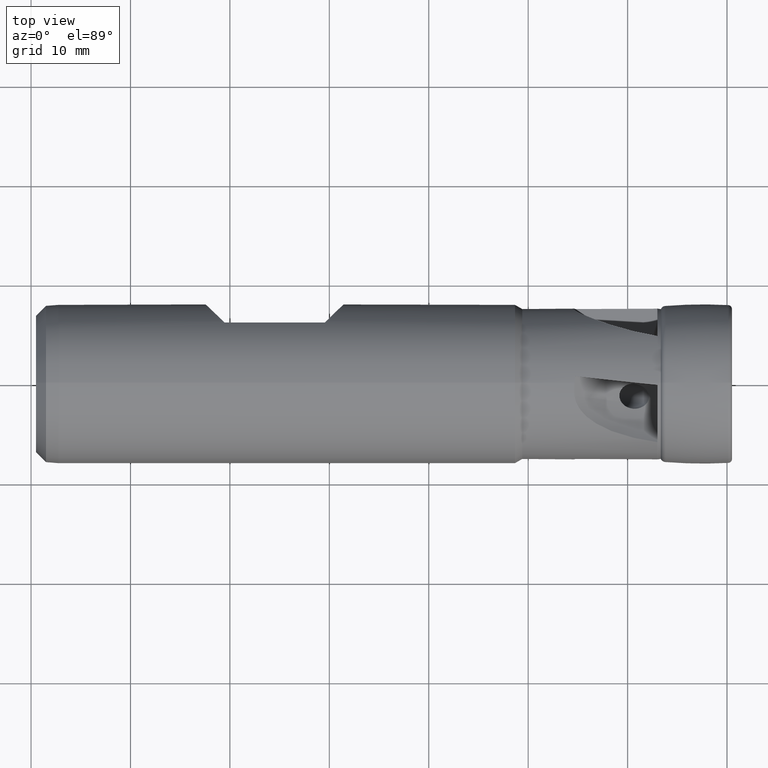
[diagram: clean part render]
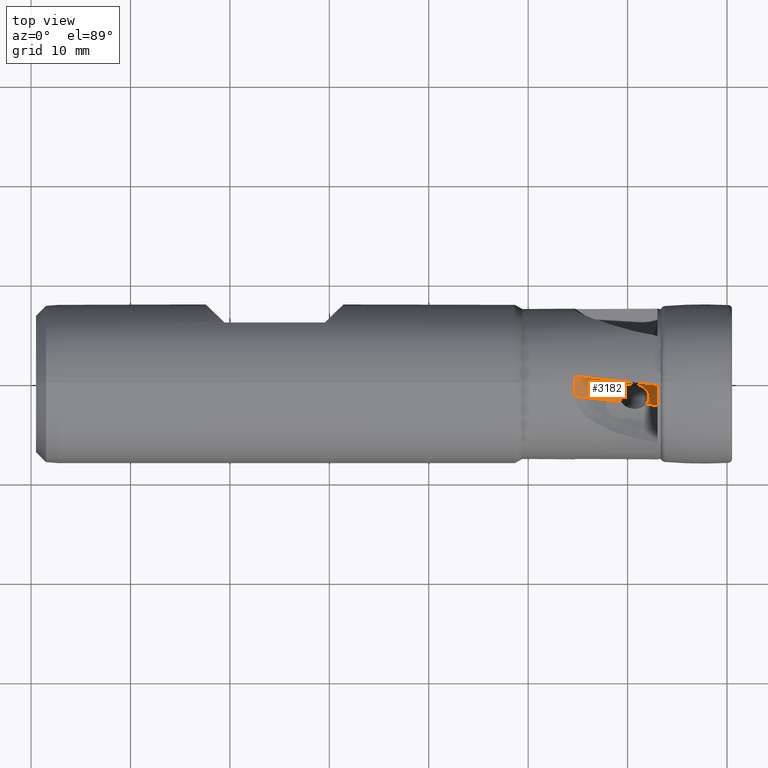
[diagram: same view with one face highlighted and labeled with its STEP entity id]
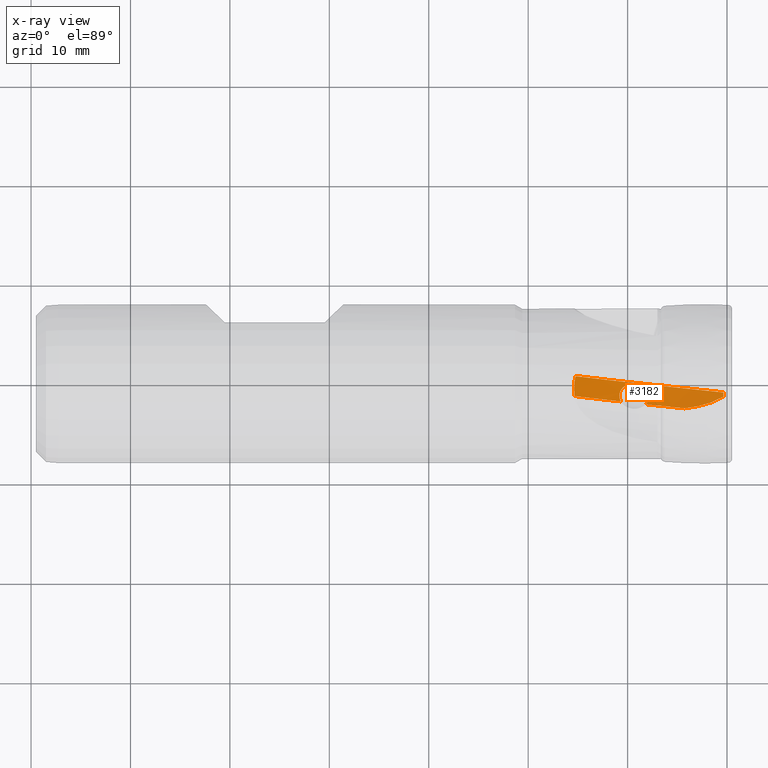
[diagram: x-ray of the same camera — body ghosted, the highlighted face saturated]
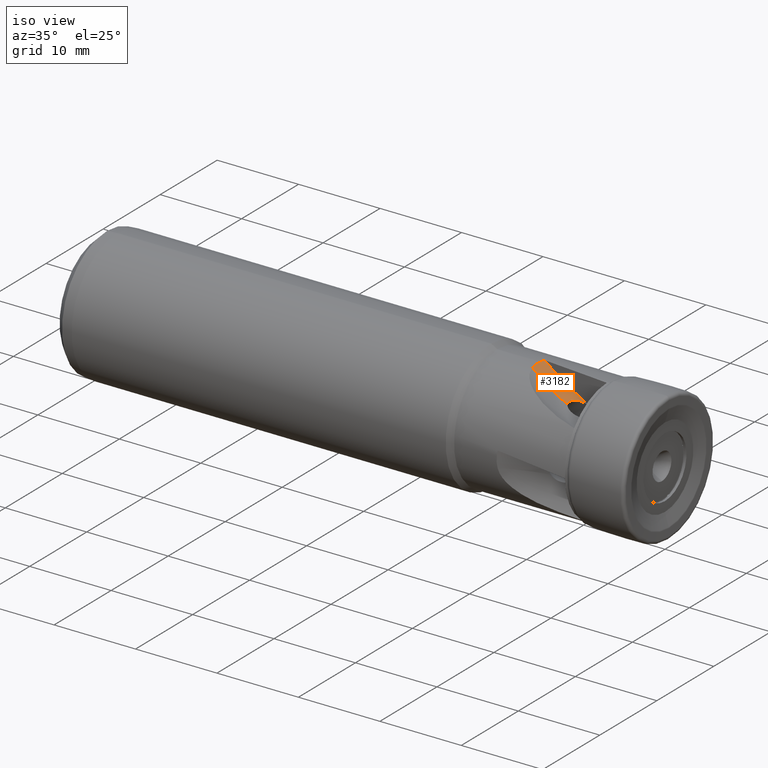
[diagram: same view with one face highlighted and labeled with its STEP entity id]
A machine part, top view. The second image highlights one B-rep face of the part: STEP entity #3182.
The next image is the same camera in x-ray: the body ghosted, the highlighted face saturated — about 0% of this face is hidden behind the body in this view.
A second angle (iso view) of the same face is appended — the face is thin or edge-on in the first view.
In plain terms, the highlighted cylindrical surface (partial cylindrical patch) has radius 20 mm, axis along (-0.1045, -0.9945, 0).
Its self-contained STEP definition (entity closure, byte-faithful):
#52 = CARTESIAN_POINT ( 'NONE',  ( -0.6430654398782204000, -1.518721256459002000, 3.531531203150680000 ) ) ;
#56 = CARTESIAN_POINT ( 'NONE',  ( -0.9491225686580649900, -1.669713565401071300, 3.496535449643392900 ) ) ;
#61 = CARTESIAN_POINT ( 'NONE',  ( -0.3555476460868538000, -1.329172150144347000, 3.568958944776029300 ) ) ;
#62 = CARTESIAN_POINT ( 'NONE',  ( -1.581926701552420500, -1.930577704460706000, 3.438176276558116300 ) ) ;
#63 = CARTESIAN_POINT ( 'NONE',  ( -1.910830170283150100, -2.039796630853040900, 3.414637930529562200 ) ) ;
#64 = CARTESIAN_POINT ( 'NONE',  ( -2.902154370875632800, -2.317322542721818900, 3.367027079377771200 ) ) ;
#65 = CARTESIAN_POINT ( 'NONE',  ( -3.573402403867854000, -2.439718930446431500, 3.365173697982532600 ) ) ;
#66 = CARTESIAN_POINT ( 'NONE',  ( -4.251519061260784900, -2.519396765061140200, 3.397345201655537200 ) ) ;
#122 = EDGE_CURVE ( 'NONE', #1472, #3272, #1615, .T. ) ;
#168 = EDGE_CURVE ( 'NONE', #3176, #3657, #1593, .T. ) ;
#213 = EDGE_CURVE ( 'NONE', #1449, #1424, #1548, .T. ) ;
#224 = EDGE_CURVE ( 'NONE', #3323, #1449, #1555, .T. ) ;
#238 = EDGE_CURVE ( 'NONE', #1472, #3697, #1576, .T. ) ;
#239 = EDGE_CURVE ( 'NONE', #3697, #3703, #424, .T. ) ;
#240 = EDGE_CURVE ( 'NONE', #3323, #3703, #1859, .T. ) ;
#241 = EDGE_CURVE ( 'NONE', #1424, #3256, #1910, .T. ) ;
#242 = EDGE_CURVE ( 'NONE', #3657, #3664, #1578, .T. ) ;
#243 = EDGE_CURVE ( 'NONE', #3176, #3272, #1694, .T. ) ;
#424 =( BOUNDED_CURVE ( )  B_SPLINE_CURVE ( 3, ( #531, #557, #559, #561 ),
 .UNSPECIFIED., .F., .T. ) 
 B_SPLINE_CURVE_WITH_KNOTS ( ( 4, 4 ),
 ( 1.433439938936695200, 1.433877834390602700 ),
 .UNSPECIFIED. ) 
 CURVE ( )  GEOMETRIC_REPRESENTATION_ITEM ( )  RATIONAL_B_SPLINE_CURVE ( ( 1.000000000000000000, 0.9999999840206310600, 0.9999999840206310600, 1.000000000000000000 ) ) 
 REPRESENTATION_ITEM ( '' )  );
#529 = CARTESIAN_POINT ( 'NONE',  ( -0.3601935164255554700, -1.219336099590489400, 3.566694484725668500 ) ) ;
#531 = CARTESIAN_POINT ( 'NONE',  ( -0.3679999999999999900, -0.9995528037149387100, 3.562428131567879400 ) ) ;
#546 = CARTESIAN_POINT ( 'NONE',  ( -0.3555476460868538000, -1.329172150144347000, 3.568958944776029300 ) ) ;
#550 = CARTESIAN_POINT ( 'NONE',  ( -0.3643592328664948000, -1.109464053776719700, 3.564516693542130600 ) ) ;
#552 = CARTESIAN_POINT ( 'NONE',  ( -0.3679999999999999900, -0.9995528037149387100, 3.562428131567879400 ) ) ;
#557 = CARTESIAN_POINT ( 'NONE',  ( -0.3679999999999963900, -0.9718875409809387700, 3.562028406339253100 ) ) ;
#559 = CARTESIAN_POINT ( 'NONE',  ( -0.3679999999999963900, -0.9442214416363926600, 3.561629314274861200 ) ) ;
#561 = CARTESIAN_POINT ( 'NONE',  ( -0.3679999999999959400, -0.9165545070075488100, 3.561230855393830600 ) ) ;
#569 = CARTESIAN_POINT ( 'NONE',  ( -3.082867726209082400, -0.6312104107967750900, 23.37405680163244200 ) ) ;
#571 = DIRECTION ( 'NONE',  ( -0.1045284632676402000, -0.9945218953682748400, 6.944709277498469300E-015 ) ) ;
#573 = DIRECTION ( 'NONE',  ( -0.9945218953682747300, 0.1045284632676402000, -6.938893903907228400E-016 ) ) ;
#575 = CARTESIAN_POINT ( 'NONE',  ( -7.843024146907663600, -1.395589679726308300, 3.923128678614356900 ) ) ;
#577 = CARTESIAN_POINT ( 'NONE',  ( -7.838082028395009900, -1.210211132334131800, 3.926589187252051100 ) ) ;
#579 = CARTESIAN_POINT ( 'NONE',  ( -3.291924652744362900, -2.620254201533325200, 23.37405680163245600 ) ) ;
#581 = DIRECTION ( 'NONE',  ( -0.1045284632676402000, -0.9945218953682748400, 6.944709277498469300E-015 ) ) ;
#583 = DIRECTION ( 'NONE',  ( -0.9945218953682747300, 0.1045284632676402000, -6.938893903907227400E-016 ) ) ;
#586 = CARTESIAN_POINT ( 'NONE',  ( -7.888310505562493800, -1.026120779156462200, 3.943034282737339200 ) ) ;
#588 = CARTESIAN_POINT ( 'NONE',  ( -8.065618682472466700, -0.7006614020741651600, 3.995534808667164000 ) ) ;
#590 = CARTESIAN_POINT ( 'NONE',  ( -8.187882406339149100, -0.5627261951593602900, 4.030443159966676300 ) ) ;
#592 = CARTESIAN_POINT ( 'NONE',  ( -8.468021297006632900, -0.3344527626318284400, 4.112480789495760000 ) ) ;
#594 = CARTESIAN_POINT ( 'NONE',  ( -8.624244174820779200, -0.2453905396327599700, 4.159095739828899200 ) ) ;
#596 = CARTESIAN_POINT ( 'NONE',  ( -8.956307934476605200, -0.1145291115492749200, 4.261810279429520100 ) ) ;
#598 = CARTESIAN_POINT ( 'NONE',  ( -9.128117334176886600, -0.07416340134538607100, 4.316633493481725200 ) ) ;
#600 = CARTESIAN_POINT ( 'NONE',  ( -9.480676422003069700, -0.04473747503946319500, 4.432935912194477800 ) ) ;
#602 = CARTESIAN_POINT ( 'NONE',  ( -9.654122935049382900, -0.05614239904706578400, 4.492002250246211600 ) ) ;
#604 = CARTESIAN_POINT ( 'NONE',  ( -9.995162613731183800, -0.1373183764764977800, 4.610777880589756400 ) ) ;
#606 = CARTESIAN_POINT ( 'NONE',  ( -10.15908153172781200, -0.2070461500220788200, 4.669262422079336600 ) ) ;
#608 = CARTESIAN_POINT ( 'NONE',  ( -10.37921085151036700, -0.3603011092287489200, 4.747770529553170200 ) ) ;
#610 = CARTESIAN_POINT ( 'NONE',  ( -10.44754439719496000, -0.4191192738515919800, 4.772113596500216400 ) ) ;
#612 = CARTESIAN_POINT ( 'NONE',  ( -10.56996823113387400, -0.5506077321991147400, 4.815133072529763900 ) ) ;
#614 = CARTESIAN_POINT ( 'NONE',  ( -10.62523741272517900, -0.6248718210856157900, 4.834211284523117800 ) ) ;
#616 = CARTESIAN_POINT ( 'NONE',  ( -10.71615865828247600, -0.7832297155920269200, 4.864272692389168800 ) ) ;
#618 = CARTESIAN_POINT ( 'NONE',  ( -10.75222577546726800, -0.8672137543548571500, 4.875417820747785000 ) ) ;
#620 = CARTESIAN_POINT ( 'NONE',  ( -10.80412687969367600, -1.045579138084486800, 4.889003430202998300 ) ) ;
#622 = CARTESIAN_POINT ( 'NONE',  ( -10.81912597477694000, -1.138156269201582300, 4.891176216164628200 ) ) ;
#624 = CARTESIAN_POINT ( 'NONE',  ( -10.82271436921518100, -1.230497586509119900, 4.888663595328899300 ) ) ;
#632 = CARTESIAN_POINT ( 'NONE',  ( -3.291924652744362900, -2.620254201533325200, 23.37405680163245600 ) ) ;
#634 = DIRECTION ( 'NONE',  ( -0.1045284632676402000, -0.9945218953682748400, 6.944709277498469300E-015 ) ) ;
#636 = DIRECTION ( 'NONE',  ( -0.9945218953682747300, 0.1045284632676402000, -6.938893903907227400E-016 ) ) ;
#662 = CARTESIAN_POINT ( 'NONE',  ( -15.33333440140710600, -1.354651038379739900, 7.455429351433569000 ) ) ;
#679 = CARTESIAN_POINT ( 'NONE',  ( -15.35066473433331200, 9.296650137347176800E-016, 7.577499999999998800 ) ) ;
#692 = CARTESIAN_POINT ( 'NONE',  ( -0.3555476460868538000, -1.329172150144347000, 3.568958944776029300 ) ) ;
#1280 = CARTESIAN_POINT ( 'NONE',  ( -10.82271436921518100, -1.230497586509119900, 4.888663595328899300 ) ) ;
#1290 = CARTESIAN_POINT ( 'NONE',  ( -10.82686753272053400, -1.337372289298629900, 4.885755518935032300 ) ) ;
#1424 = VERTEX_POINT ( 'NONE', #662 ) ;
#1449 = VERTEX_POINT ( 'NONE', #679 ) ;
#1472 = VERTEX_POINT ( 'NONE', #692 ) ;
#1482 = ORIENTED_EDGE ( 'NONE', *, *, #213, .T. ) ;
#1483 = ORIENTED_EDGE ( 'NONE', *, *, #224, .T. ) ;
#1484 = ORIENTED_EDGE ( 'NONE', *, *, #240, .F. ) ;
#1487 = ORIENTED_EDGE ( 'NONE', *, *, #122, .F. ) ;
#1489 = ORIENTED_EDGE ( 'NONE', *, *, #239, .T. ) ;
#1490 = ORIENTED_EDGE ( 'NONE', *, *, #238, .T. ) ;
#1548 = B_SPLINE_CURVE_WITH_KNOTS ( 'NONE', 3,
 ( #2223, #2202, #2224, #2225, #2226, #2227 ),
 .UNSPECIFIED., .F., .F.,
 ( 4, 2, 4 ),
 ( 0.0006530204088868937800, 0.001330738175766359500, 0.002008455942645825200 ),
 .UNSPECIFIED. ) ;
#1555 = B_SPLINE_CURVE_WITH_KNOTS ( 'NONE', 3,
 ( #2277, #2276, #2284, #2285 ),
 .UNSPECIFIED., .F., .F.,
 ( 4, 4 ),
 ( 9.038065643781130800E-017, 0.0006530204088868937800 ),
 .UNSPECIFIED. ) ;
#1556 = B_SPLINE_CURVE_WITH_KNOTS ( 'NONE', 3,
 ( #1280, #1290, #2388, #2389, #2390, #2391 ),
 .UNSPECIFIED., .F., .F.,
 ( 4, 2, 4 ),
 ( 0.005241919288940800400, 0.005563074236786090200, 0.005884229184631380000 ),
 .UNSPECIFIED. ) ;
#1576 = B_SPLINE_CURVE_WITH_KNOTS ( 'NONE', 3,
 ( #546, #529, #550, #552 ),
 .UNSPECIFIED., .F., .F.,
 ( 4, 4 ),
 ( 0.003392202954331046500, 0.003721942571517439900 ),
 .UNSPECIFIED. ) ;
#1578 = B_SPLINE_CURVE_WITH_KNOTS ( 'NONE', 3,
 ( #575, #577, #586, #588, #590, #592, #594, #596, #598, #600, #602, #604, #606, #608, #610, #612, #614, #616, #618, #620, #622, #624 ),
 .UNSPECIFIED., .F., .F.,
 ( 4, 2, 2, 2, 2, 2, 2, 2, 2, 2, 4 ),
 ( 0.0008021976081572250400, 0.001357162818255171800, 0.001912128028353118400, 0.002467093238451064900, 0.003022058448549011500, 0.003577023658646958500, 0.004131988868744904600, 0.004409471473793879000, 0.004686954078842852500, 0.004964436683891826000, 0.005241919288940800400 ),
 .UNSPECIFIED. ) ;
#1593 = B_SPLINE_CURVE_WITH_KNOTS ( 'NONE', 3,
 ( #2380, #2377, #2362, #2382, #2383, #2384 ),
 .UNSPECIFIED., .F., .F.,
 ( 4, 2, 4 ),
 ( 2.457853564396597600E-016, 0.0004010988040787354100, 0.0008021976081572250400 ),
 .UNSPECIFIED. ) ;
#1615 = B_SPLINE_CURVE_WITH_KNOTS ( 'NONE', 3,
 ( #61, #52, #56, #62, #63, #64, #65, #66 ),
 .UNSPECIFIED., .F., .F.,
 ( 4, 2, 2, 4 ),
 ( 0.0001169584495695843200, 0.001145978040869430900, 0.002174997632169277100, 0.004233036814768970100 ),
 .UNSPECIFIED. ) ;
#1633 = AXIS2_PLACEMENT_3D ( 'NONE', #569, #571, #573 ) ;
#1694 = CIRCLE ( 'NONE', #1935, 20.00000000000000400 ) ;
#1859 = CIRCLE ( 'NONE', #1633, 20.00000000000000000 ) ;
#1861 = AXIS2_PLACEMENT_3D ( 'NONE', #579, #581, #583 ) ;
#1910 = CIRCLE ( 'NONE', #1861, 20.00000000000000400 ) ;
#1935 = AXIS2_PLACEMENT_3D ( 'NONE', #632, #634, #636 ) ;
#1944 = CARTESIAN_POINT ( 'NONE',  ( -8.166138102363257500, -2.107953724391300500, 3.983863623928560700 ) ) ;
#1976 = CARTESIAN_POINT ( 'NONE',  ( -4.193282724749843200, -11.19610340234996700, 23.37405680163251600 ) ) ;
#1982 = DIRECTION ( 'NONE',  ( -0.1045284632676402000, -0.9945218953682748400, 6.944709277498469300E-015 ) ) ;
#1987 = CYLINDRICAL_SURFACE ( 'NONE', #3071, 20.00000000000000400 ) ;
#1988 = FACE_OUTER_BOUND ( 'NONE', #2831, .T. ) ;
#1990 = DIRECTION ( 'NONE',  ( -0.9945218953682747300, 0.1045284632676402000, -6.938893903907227400E-016 ) ) ;
#2090 = CARTESIAN_POINT ( 'NONE',  ( -10.67353814172281400, -1.844415360747673000, 4.802307923498768900 ) ) ;
#2100 = CARTESIAN_POINT ( 'NONE',  ( -4.251519061260784900, -2.519396765061140200, 3.397345201655537200 ) ) ;
#2130 = CARTESIAN_POINT ( 'NONE',  ( -15.24669052682192600, 0.6472588825685620100, 7.549805440468984100 ) ) ;
#2151 = CARTESIAN_POINT ( 'NONE',  ( -0.3679999999999999900, -0.9995528037149387100, 3.562428131567879400 ) ) ;
#2154 = CARTESIAN_POINT ( 'NONE',  ( -7.843024146907663600, -1.395589679726308300, 3.923128678614356900 ) ) ;
#2160 = CARTESIAN_POINT ( 'NONE',  ( -10.82271436921518100, -1.230497586509119900, 4.888663595328899300 ) ) ;
#2166 = CARTESIAN_POINT ( 'NONE',  ( -0.3679999999999959400, -0.9165545070075488100, 3.561230855393830600 ) ) ;
#2202 = CARTESIAN_POINT ( 'NONE',  ( -15.37428799581420500, -0.2247603193266936900, 7.577499999999998800 ) ) ;
#2223 = CARTESIAN_POINT ( 'NONE',  ( -15.35066473433331200, 9.296650137347176800E-016, 7.577499999999998800 ) ) ;
#2224 = CARTESIAN_POINT ( 'NONE',  ( -15.38511802449076200, -0.4503980382160495700, 7.567522191860283500 ) ) ;
#2225 = CARTESIAN_POINT ( 'NONE',  ( -15.37984515053955000, -0.9035261771321729800, 7.526877902846814900 ) ) ;
#2226 = CARTESIAN_POINT ( 'NONE',  ( -15.36353475583754300, -1.131112489964476700, 7.496046291445235700 ) ) ;
#2227 = CARTESIAN_POINT ( 'NONE',  ( -15.33333440140710600, -1.354651038379739900, 7.455429351433569000 ) ) ;
#2276 = CARTESIAN_POINT ( 'NONE',  ( -15.29325299752378200, 0.4323239280213441200, 7.568232214456366500 ) ) ;
#2277 = CARTESIAN_POINT ( 'NONE',  ( -15.24669052682192600, 0.6472588825685620100, 7.549805440468984100 ) ) ;
#2284 = CARTESIAN_POINT ( 'NONE',  ( -15.32790235060162200, 0.2165696146702187900, 7.577499999999998800 ) ) ;
#2285 = CARTESIAN_POINT ( 'NONE',  ( -15.35066473433331200, 9.296650137347176800E-016, 7.577499999999998800 ) ) ;
#2362 = CARTESIAN_POINT ( 'NONE',  ( -7.992303576433600100, -1.905137396046121800, 3.946102354025611700 ) ) ;
#2377 = CARTESIAN_POINT ( 'NONE',  ( -8.071603614824844900, -2.013626475995050800, 3.962592181582861500 ) ) ;
#2380 = CARTESIAN_POINT ( 'NONE',  ( -8.166138102363257500, -2.107953724391300500, 3.983863623928560700 ) ) ;
#2382 = CARTESIAN_POINT ( 'NONE',  ( -7.878857615180941700, -1.662126400338395800, 3.924939068038060300 ) ) ;
#2383 = CARTESIAN_POINT ( 'NONE',  ( -7.846596042567780300, -1.529571256062796500, 3.920627610347756000 ) ) ;
#2384 = CARTESIAN_POINT ( 'NONE',  ( -7.843024146907663600, -1.395589679726308300, 3.923128678614356900 ) ) ;
#2388 = CARTESIAN_POINT ( 'NONE',  ( -10.81554298357430000, -1.446265907197326900, 4.876389734415598200 ) ) ;
#2389 = CARTESIAN_POINT ( 'NONE',  ( -10.76482254308533900, -1.652378298483698300, 4.846956458441935600 ) ) ;
#2390 = CARTESIAN_POINT ( 'NONE',  ( -10.72509568900161300, -1.752122452360381800, 4.826655781768592700 ) ) ;
#2391 = CARTESIAN_POINT ( 'NONE',  ( -10.67353814172281400, -1.844415360747673000, 4.802307923498768900 ) ) ;
#2686 = EDGE_CURVE ( 'NONE', #3664, #3256, #1556, .T. ) ;
#2831 = EDGE_LOOP ( 'NONE', ( #1487, #1490, #1489, #1484, #1483, #1482, #3392, #3765, #3764, #3763, #3221 ) ) ;
#3071 = AXIS2_PLACEMENT_3D ( 'NONE', #1976, #1982, #1990 ) ;
#3176 = VERTEX_POINT ( 'NONE', #1944 ) ;
#3182 = ADVANCED_FACE ( 'NONE', ( #1988 ), #1987, .F. ) ;
#3221 = ORIENTED_EDGE ( 'NONE', *, *, #243, .T. ) ;
#3256 = VERTEX_POINT ( 'NONE', #2090 ) ;
#3272 = VERTEX_POINT ( 'NONE', #2100 ) ;
#3323 = VERTEX_POINT ( 'NONE', #2130 ) ;
#3392 = ORIENTED_EDGE ( 'NONE', *, *, #241, .T. ) ;
#3657 = VERTEX_POINT ( 'NONE', #2154 ) ;
#3664 = VERTEX_POINT ( 'NONE', #2160 ) ;
#3697 = VERTEX_POINT ( 'NONE', #2151 ) ;
#3703 = VERTEX_POINT ( 'NONE', #2166 ) ;
#3763 = ORIENTED_EDGE ( 'NONE', *, *, #168, .F. ) ;
#3764 = ORIENTED_EDGE ( 'NONE', *, *, #242, .F. ) ;
#3765 = ORIENTED_EDGE ( 'NONE', *, *, #2686, .F. ) ;